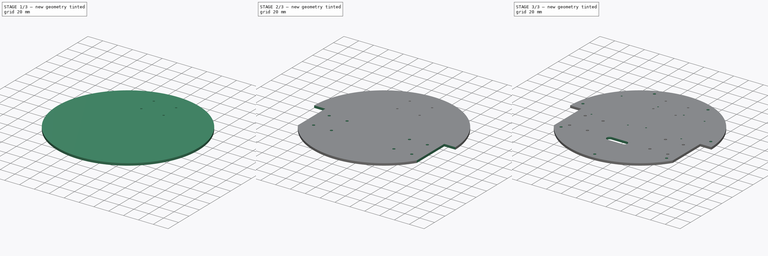
[diagram: build sequence overview — one tinted view per stage of 3, left to right]
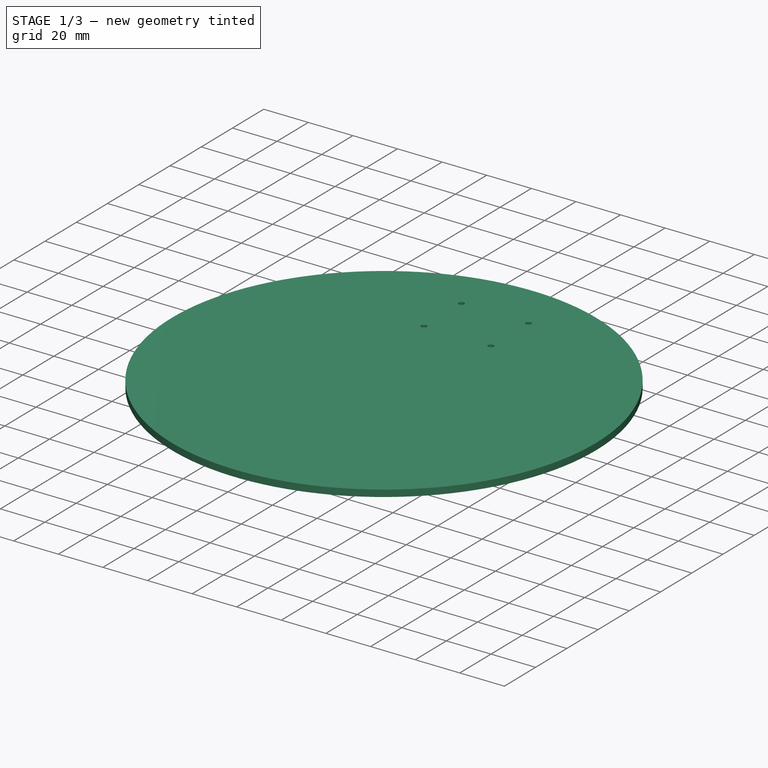
[diagram: stage 1 of 3 — iso view after this stage's code; geometry added in this stage tinted green]
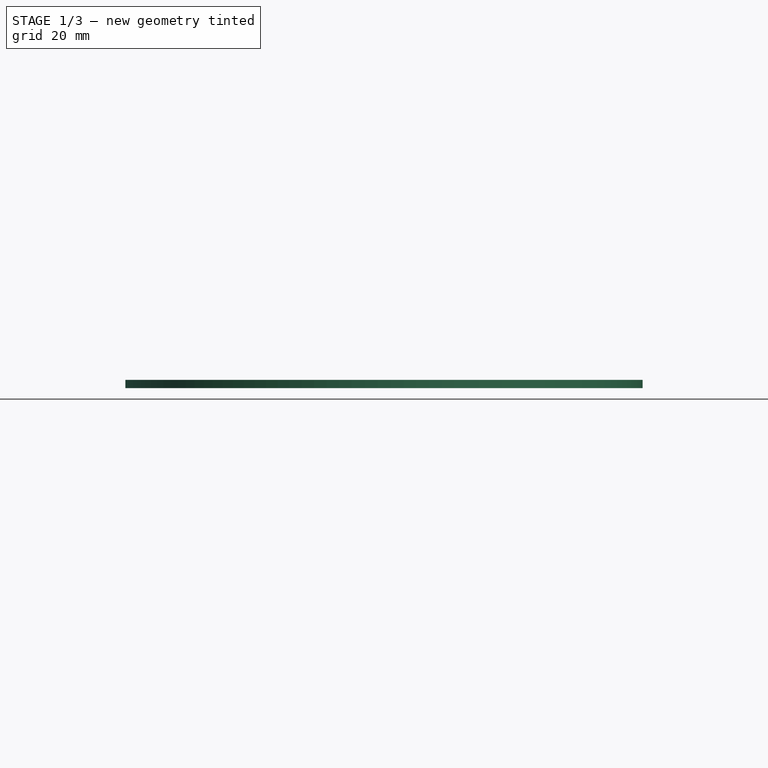
[diagram: stage 1 of 3 — front view after this stage's code; geometry added in this stage tinted green]
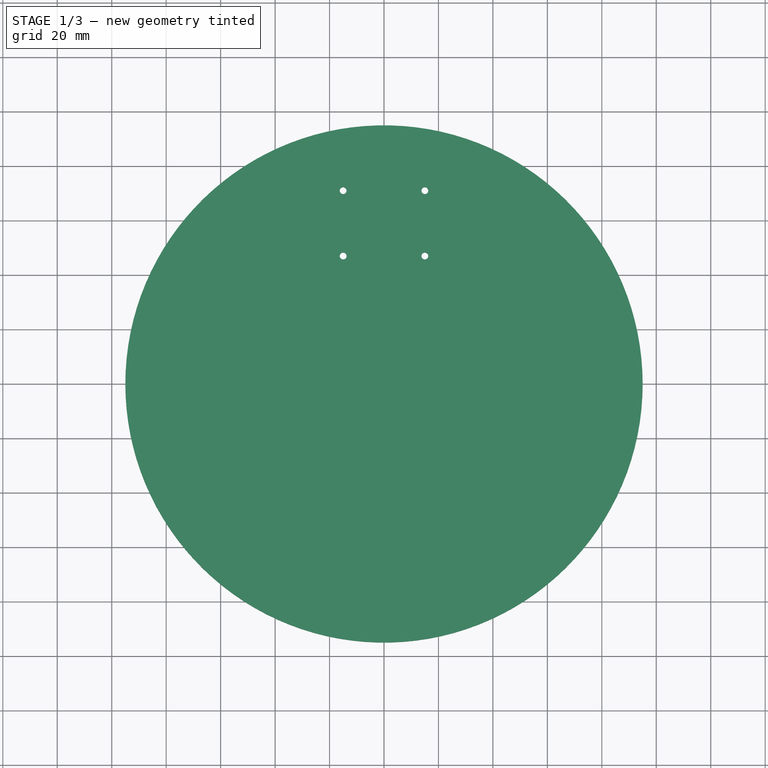
[diagram: stage 1 of 3 — top view after this stage's code; geometry added in this stage tinted green]
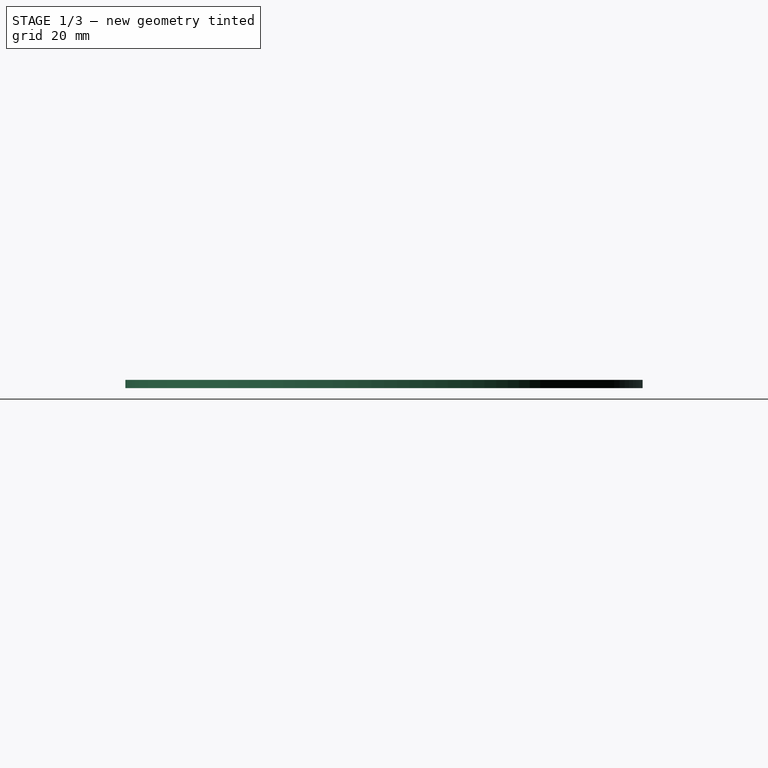
[diagram: stage 1 of 3 — right view after this stage's code; geometry added in this stage tinted green]
FCSTD DOCUMENT  (FreeCAD 0.17R13541 (Git))
Label: Minirobot_1-plate_v2
License: All rights reserved
LicenseURL: http://en.wikipedia.org/wiki/All_rights_reserved
objects: Sketcher::SketchObject×5, PartDesign::Pocket×4, PartDesign::Pad×1, PartDesign::Mirrored×1, PartDesign::Body×1, TechDraw::DrawSVGTemplate×1, TechDraw::DrawViewPart×1, TechDraw::DrawPage×1
note: 17 computed .brp shape members not serialized (recipe doc carries the construction recipe); baked Part::Feature solids carry a one-line shape summary decoded from their .brp

FEATURE [Sketcher::SketchObject] Sketch
  MapMode = 5
  Support = -> [XY_Plane]
  sketch-geometry (1):
    g0: Circle CenterX=0 CenterY=0 CenterZ=0 NormalX=0 NormalY=0 NormalZ=1 AngleXU=0 Radius=95
  constraints (2):
    c: Coincident(g0,g-1)
    c: Radius(g0) = 95
FEATURE [PartDesign::Pad] Pad
  Length = 3
  Length2 = 100
  Profile = -> Sketch
  Type = 0
FEATURE [Sketcher::SketchObject] Sketch001
  MapMode = 5
  Placement = pos=(0,0,3) rot=(0,0,1;0rad)
  Support = -> [Pad]
  sketch-geometry (11):
    g0: LineSegment [constr] StartX=-15 StartY=71 StartZ=0 EndX=15 EndY=71 EndZ=0
    g1: LineSegment [constr] StartX=15 StartY=71 StartZ=0 EndX=15 EndY=47 EndZ=0
    g2: LineSegment [constr] StartX=15 StartY=47 StartZ=0 EndX=-15 EndY=47 EndZ=0
    g3: LineSegment [constr] StartX=-15 StartY=47 StartZ=0 EndX=-15 EndY=71 EndZ=0
    g4: Circle CenterX=-15 CenterY=71 CenterZ=0 NormalX=0 NormalY=0 NormalZ=1 AngleXU=0 Radius=1.25
    g5: Circle CenterX=15 CenterY=71 CenterZ=0 NormalX=0 NormalY=0 NormalZ=1 AngleXU=0 Radius=1.25
    g6: Circle CenterX=15 CenterY=47 CenterZ=0 NormalX=0 NormalY=0 NormalZ=1 AngleXU=0 Radius=1.25
    g7: Circle CenterX=-15 CenterY=47 CenterZ=0 NormalX=0 NormalY=0 NormalZ=1 AngleXU=0 Radius=1.25
    g8: Circle [constr] CenterX=0 CenterY=59 CenterZ=0 NormalX=0 NormalY=0 NormalZ=1 AngleXU=0 Radius=32
    g9: LineSegment [constr] StartX=-15 StartY=71 StartZ=0 EndX=0 EndY=59 EndZ=0
    g10: LineSegment [constr] StartX=0 StartY=59 StartZ=0 EndX=15 EndY=47 EndZ=0
  constraints (27):
    c: Coincident(g0,g1)
    c: Coincident(g1,g2)
    c: Coincident(g2,g3)
    c: Coincident(g3,g0)
    c: Horizontal(g0)
    c: Horizontal(g2)
    c: Vertical(g1)
    c: Vertical(g3)
    c: Symmetric(g0,g0,g-2)
    c: DistanceY(g3,g3) = 24
    c: DistanceX(g0,g0) = 30
    c: Coincident(g4,g0)
    c: Coincident(g5,g0)
    c: Coincident(g6,g1)
    c: Coincident(g7,g2)
    c: Equal(g4,g7)
    c: Equal(g7,g6)
    c: Equal(g6,g5)
    c: Radius(g5) = 1.25
    c: PointOnObject(g8,g-2)
    c: Coincident(g0,g9)
    c: Coincident(g9,g8)
    c: Coincident(g9,g10)
    c: Coincident(g10,g1)
    c: Equal(g9,g10)
    c: Radius(g8) = 32
    c: DistanceY(g8) = 59
FEATURE [PartDesign::Pocket] Pocket  label="Caster_holes"
  BaseFeature = -> Pad
  Length = 5
  Length2 = 100
  Profile = -> Sketch001
  Type = 1
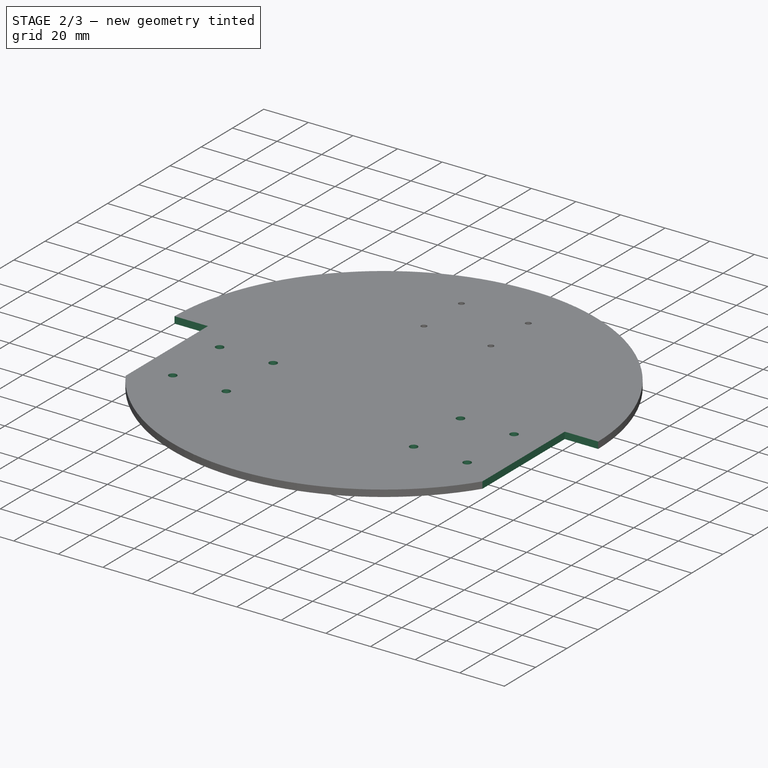
[diagram: stage 2 of 3 — iso view after this stage's code; geometry added in this stage tinted green]
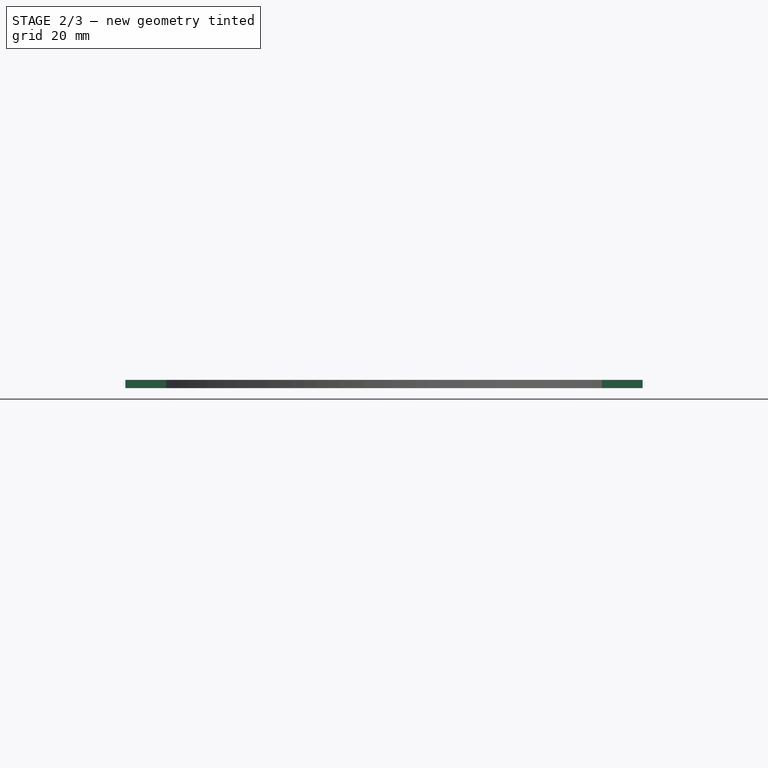
[diagram: stage 2 of 3 — front view after this stage's code; geometry added in this stage tinted green]
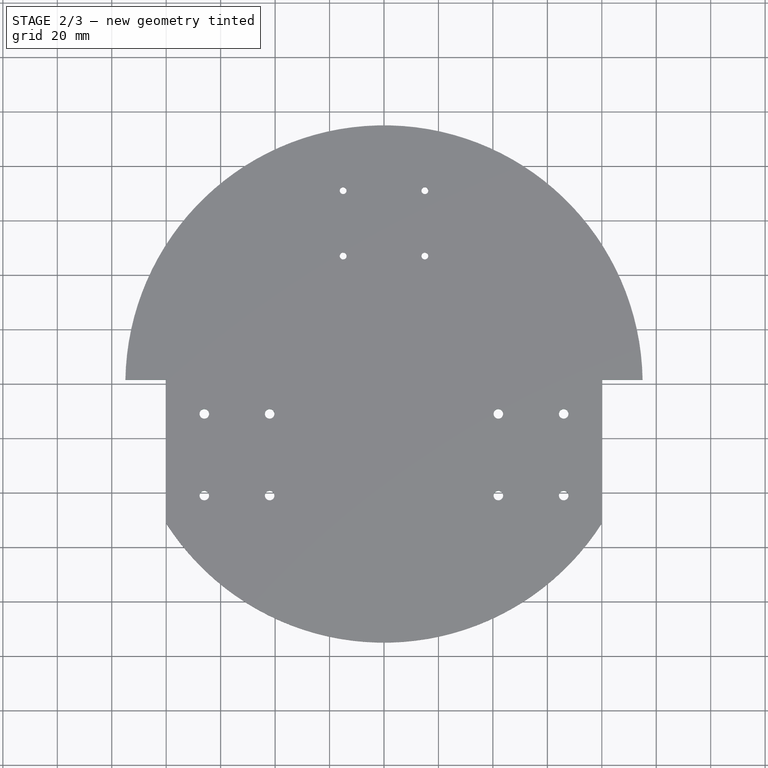
[diagram: stage 2 of 3 — top view after this stage's code; geometry added in this stage tinted green]
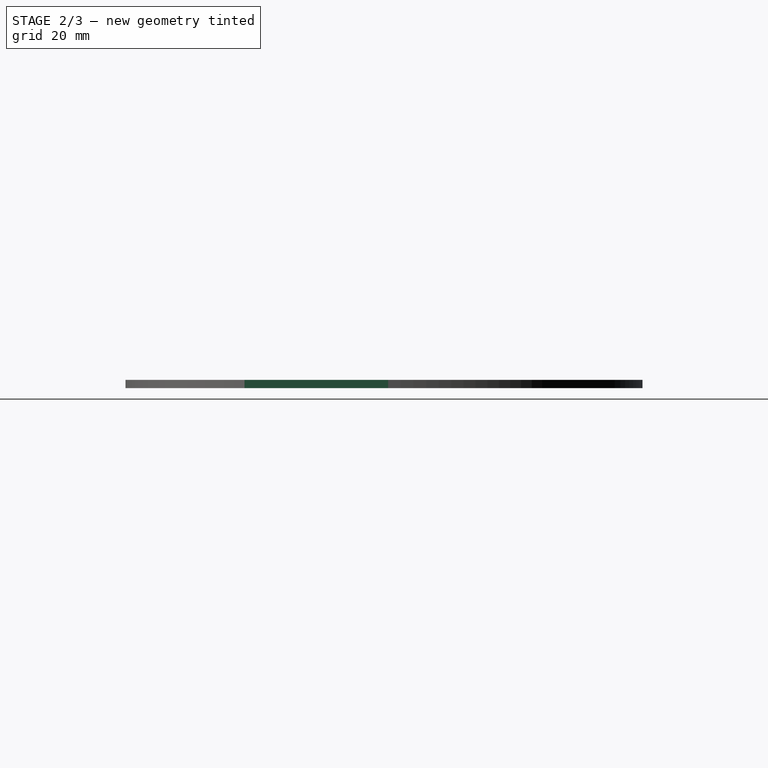
[diagram: stage 2 of 3 — right view after this stage's code; geometry added in this stage tinted green]
FEATURE [Sketcher::SketchObject] Sketch002
  MapMode = 5
  Placement = pos=(0,0,3) rot=(0,0,1;0rad)
  Support = -> [Pocket]
  sketch-geometry (12):
    g0: LineSegment StartX=-96 StartY=1.5 StartZ=0 EndX=-80 EndY=1.5 EndZ=0
    g1: LineSegment StartX=-80 StartY=1.5 StartZ=0 EndX=-80 EndY=-53.5 EndZ=0
    g2: LineSegment StartX=-80 StartY=-53.5 StartZ=0 EndX=-96 EndY=-53.5 EndZ=0
    g3: LineSegment StartX=-96 StartY=-53.5 StartZ=0 EndX=-96 EndY=1.5 EndZ=0
    g4: LineSegment [constr] StartX=-66 StartY=-11 StartZ=0 EndX=-42 EndY=-11 EndZ=0
    g5: LineSegment [constr] StartX=-42 StartY=-11 StartZ=0 EndX=-42 EndY=-41 EndZ=0
    g6: LineSegment [constr] StartX=-42 StartY=-41 StartZ=0 EndX=-66 EndY=-41 EndZ=0
    g7: LineSegment [constr] StartX=-66 StartY=-41 StartZ=0 EndX=-66 EndY=-11 EndZ=0
    g8: Circle CenterX=-66 CenterY=-11 CenterZ=0 NormalX=0 NormalY=0 NormalZ=1 AngleXU=0 Radius=1.75
    g9: Circle CenterX=-42 CenterY=-11 CenterZ=0 NormalX=0 NormalY=0 NormalZ=1 AngleXU=0 Radius=1.75
    g10: Circle CenterX=-66 CenterY=-41 CenterZ=0 NormalX=0 NormalY=0 NormalZ=1 AngleXU=0 Radius=1.75
    g11: Circle CenterX=-42 CenterY=-41 CenterZ=0 NormalX=0 NormalY=0 NormalZ=1 AngleXU=0 Radius=1.75
  constraints (32):
    c: Coincident(g0,g1)
    c: Coincident(g1,g2)
    c: Coincident(g2,g3)
    c: Coincident(g3,g0)
    c: Horizontal(g0)
    c: Horizontal(g2)
    c: Vertical(g1)
    c: Vertical(g3)
    c: DistanceX(g2,g2) = 16
    c: DistanceY(g3,g3) = 55
    c: Coincident(g4,g5)
    c: Coincident(g5,g6)
    c: Coincident(g6,g7)
    c: Coincident(g7,g4)
    c: Horizontal(g4)
    c: Horizontal(g6)
    c: Vertical(g5)
    c: Vertical(g7)
    c: Coincident(g8,g4)
    c: Coincident(g9,g4)
    c: Coincident(g10,g6)
    c: Coincident(g11,g5)
    c: Equal(g11,g10)
    c: Equal(g10,g8)
    c: Equal(g8,g9)
    c: Radius(g9) = 1.75
    c: DistanceX(g4,g4) = 24
    c: DistanceY(g5,g5) = 30
    c: DistanceY(g1,g6) = 12.5
    c: DistanceX(g1,g6) = 14
    c: DistanceX(g5) = -42
    c: DistanceY(g4) = -11
FEATURE [PartDesign::Pocket] Pocket001  label="wheel_cut-holes"
  BaseFeature = -> Pocket
  Length = 5
  Length2 = 100
  Profile = -> Sketch002
  Type = 1
FEATURE [PartDesign::Mirrored] Mirrored
  BaseFeature = -> Pocket001
  MirrorPlane = -> YZ_Plane
  Originals = -> [Pocket001]
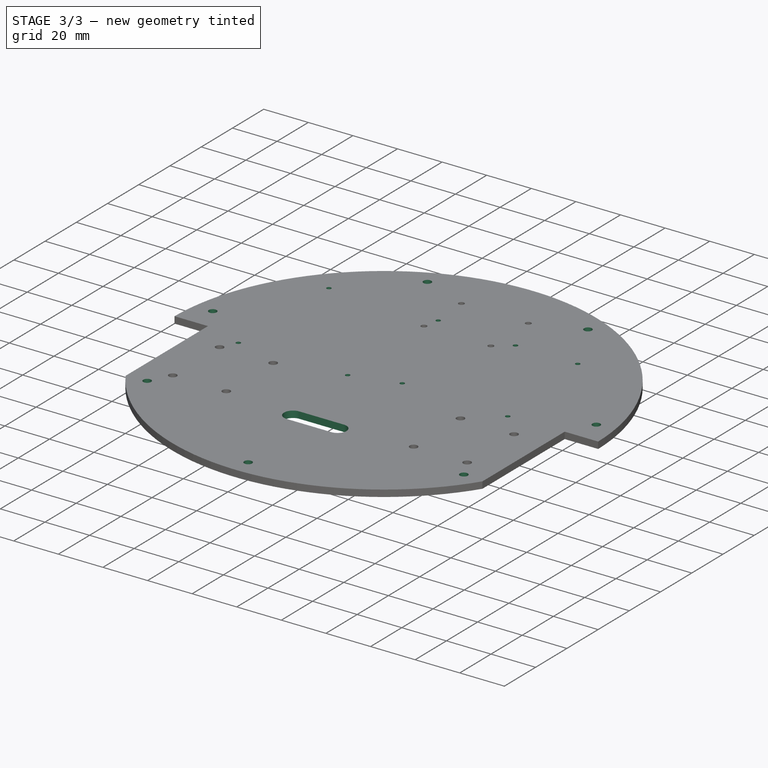
[diagram: stage 3 of 3 — iso view after this stage's code; geometry added in this stage tinted green]
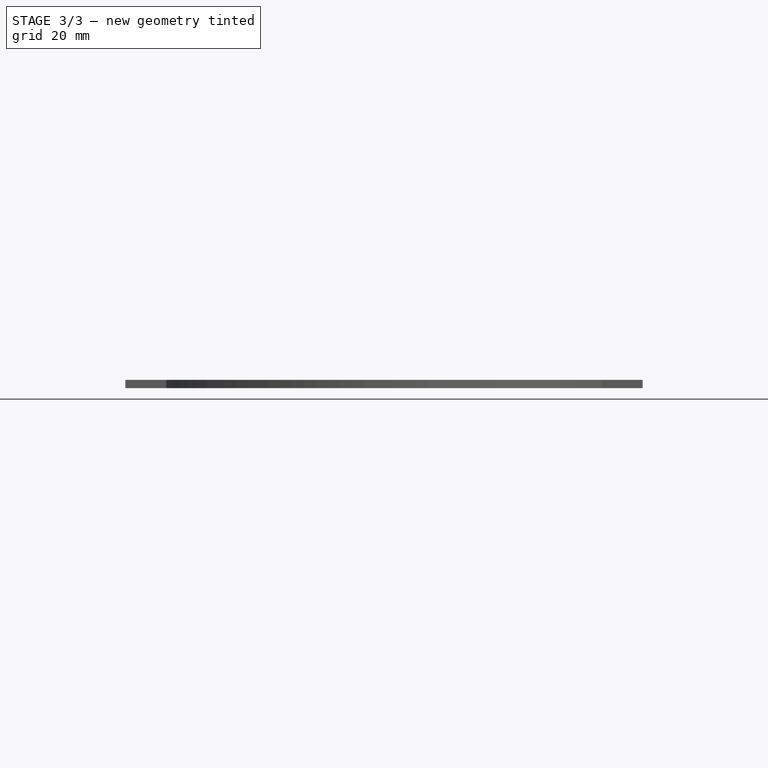
[diagram: stage 3 of 3 — front view after this stage's code; geometry added in this stage tinted green]
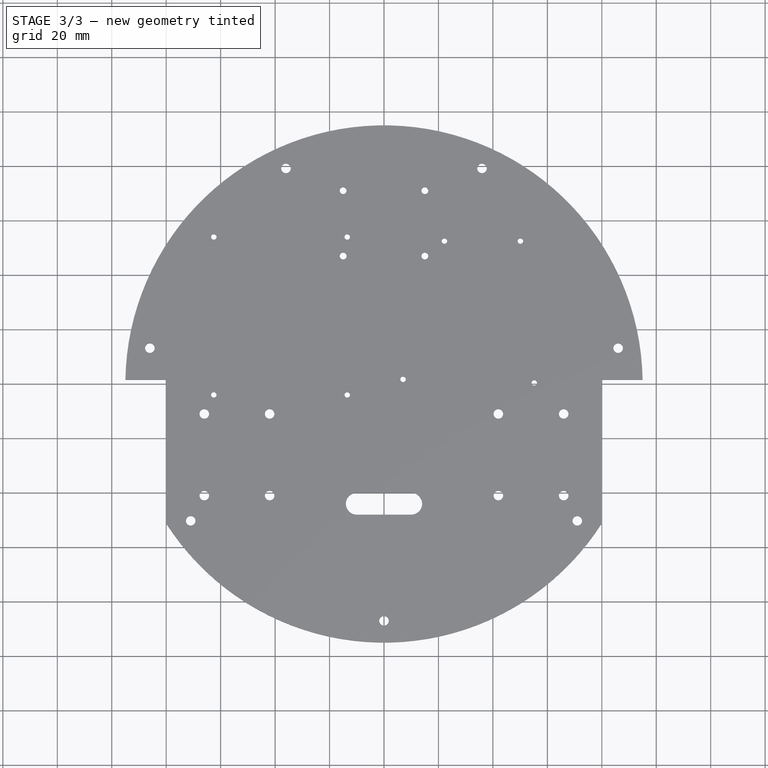
[diagram: stage 3 of 3 — top view after this stage's code; geometry added in this stage tinted green]
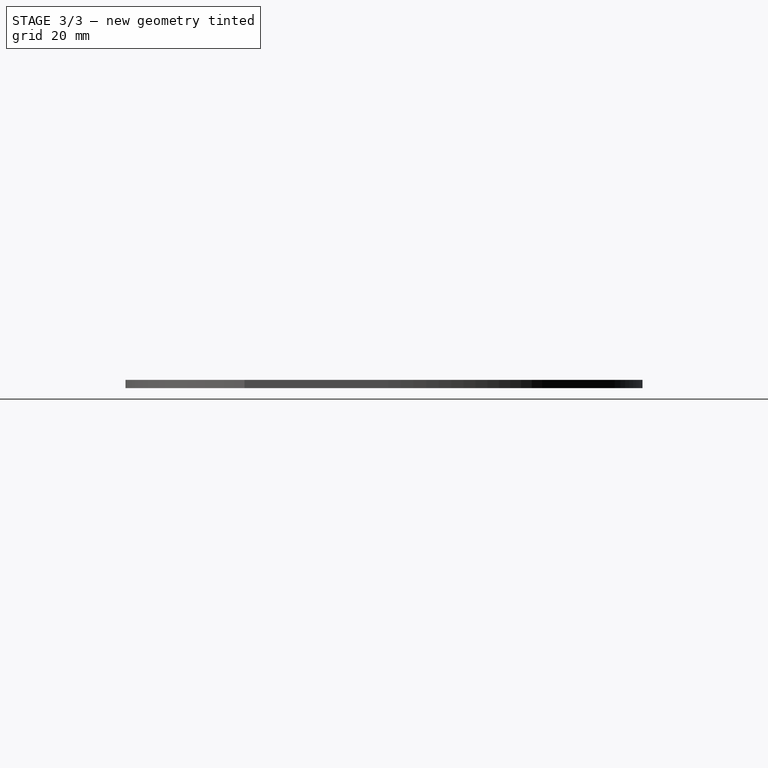
[diagram: stage 3 of 3 — right view after this stage's code; geometry added in this stage tinted green]
FEATURE [Sketcher::SketchObject] Sketch003
  MapMode = 5
  Placement = pos=(0,0,3) rot=(0,0,1;0rad)
  Support = -> [Mirrored]
  sketch-geometry (8):
    g0: Circle CenterX=-36 CenterY=79.2023 CenterZ=0 NormalX=0 NormalY=0 NormalZ=1 AngleXU=0 Radius=1.75
    g1: Circle CenterX=36 CenterY=79.2023 CenterZ=0 NormalX=0 NormalY=0 NormalZ=1 AngleXU=0 Radius=1.75
    g2: Circle CenterX=-71 CenterY=-50.2792 CenterZ=0 NormalX=0 NormalY=0 NormalZ=1 AngleXU=0 Radius=1.75
    g3: Circle CenterX=71 CenterY=-50.2792 CenterZ=0 NormalX=0 NormalY=0 NormalZ=1 AngleXU=0 Radius=1.75
    g4: Circle [constr] CenterX=0 CenterY=0 CenterZ=0 NormalX=0 NormalY=0 NormalZ=1 AngleXU=0 Radius=87
    g5: Circle CenterX=-86 CenterY=13.1529 CenterZ=0 NormalX=0 NormalY=0 NormalZ=1 AngleXU=0 Radius=1.75
    g6: Circle CenterX=86 CenterY=13.1529 CenterZ=0 NormalX=0 NormalY=0 NormalZ=1 AngleXU=0 Radius=1.75
    g7: Circle CenterX=0 CenterY=-87 CenterZ=0 NormalX=0 NormalY=0 NormalZ=1 AngleXU=0 Radius=1.75
  constraints (23):
    c: Equal(g1,g0)
    c: Radius(g0) = 1.75
    c: Equal(g3,g2)
    c: Equal(g2,g0)
    c: Coincident(g4,g-1)
    c: PointOnObject(g0,g4)
    c: PointOnObject(g1,g4)
    c: Horizontal(g0,g1)
    c: PointOnObject(g2,g4)
    c: PointOnObject(g3,g4)
    c: Horizontal(g3,g2)
    c: DistanceX(g0,g1) = 72
    c: DistanceX(g2,g3) = 142
    c: Radius(g4) = 87
    c: PointOnObject(g5,g4)
    c: PointOnObject(g6,g4)
    c: Horizontal(g5,g6)
    c: DistanceX(g5,g6) = 172
    c: PointOnObject(g7,g4)
    c: PointOnObject(g7,g-2)
    c: Equal(g5,g6)
    c: Equal(g6,g7)
    c: Equal(g7,g0)
FEATURE [PartDesign::Pocket] Pocket002  label="Mounting holes"
  BaseFeature = -> Mirrored
  Length = 5
  Length2 = 100
  Profile = -> Sketch003
  Type = 1
FEATURE [Sketcher::SketchObject] Sketch004
  MapMode = 5
  Placement = pos=(0,0,3) rot=(0,0,1;0rad)
  Support = -> [Pocket002]
  sketch-geometry (17):
    g0: Circle [constr] CenterX=0 CenterY=64 CenterZ=0 NormalX=0 NormalY=0 NormalZ=1 AngleXU=0 Radius=32
    g1: ArcOfCircle CenterX=-10 CenterY=-44 CenterZ=0 NormalX=0 NormalY=0 NormalZ=1 AngleXU=0 Radius=4 StartAngle=1.5708 EndAngle=4.71239
    g2: ArcOfCircle CenterX=10 CenterY=-44 CenterZ=0 NormalX=0 NormalY=0 NormalZ=1 AngleXU=0 Radius=4 StartAngle=4.71239 EndAngle=7.85398
    g3: LineSegment StartX=-10 StartY=-48 StartZ=0 EndX=10 EndY=-48 EndZ=0
    g4: LineSegment StartX=-10 StartY=-40 StartZ=0 EndX=10 EndY=-40 EndZ=0
    g5: LineSegment [constr] StartX=-62.5 StartY=54 StartZ=0 EndX=-13.5 EndY=54 EndZ=0
    g6: LineSegment [constr] StartX=-13.5 StartY=54 StartZ=0 EndX=-13.5 EndY=-4 EndZ=0
    g7: LineSegment [constr] StartX=-13.5 StartY=-4 StartZ=0 EndX=-62.5 EndY=-4 EndZ=0
    g8: LineSegment [constr] StartX=-62.5 StartY=-4 StartZ=0 EndX=-62.5 EndY=54 EndZ=0
    g9: Circle CenterX=-62.5 CenterY=-4 CenterZ=0 NormalX=0 NormalY=0 NormalZ=1 AngleXU=0 Radius=1
    g10: Circle CenterX=-62.5 CenterY=54 CenterZ=0 NormalX=0 NormalY=0 NormalZ=1 AngleXU=0 Radius=1
    g11: Circle CenterX=-13.5 CenterY=54 CenterZ=0 NormalX=0 NormalY=0 NormalZ=1 AngleXU=0 Radius=1
    g12: Circle CenterX=-13.5 CenterY=-4 CenterZ=0 NormalX=0 NormalY=0 NormalZ=1 AngleXU=0 Radius=1
    g13: Circle CenterX=22.2 CenterY=52.5 CenterZ=0 NormalX=0 NormalY=0 NormalZ=1 AngleXU=0 Radius=1
    g14: Circle CenterX=7 CenterY=1.7 CenterZ=0 NormalX=0 NormalY=0 NormalZ=1 AngleXU=0 Radius=1
    g15: Circle CenterX=55.2 CenterY=0.4 CenterZ=0 NormalX=0 NormalY=0 NormalZ=1 AngleXU=0 Radius=1
    g16: Circle CenterX=50.1 CenterY=52.5 CenterZ=0 NormalX=0 NormalY=0 NormalZ=1 AngleXU=0 Radius=1
  constraints (45):
    c: Radius(g0) = 32
    c: DistanceY(g0) = 64
    c: Tangent(g1,g4) = 1.5708
    c: Tangent(g1,g3) = -1.5708
    c: Tangent(g3,g2) = -1.5708
    c: Tangent(g4,g2) = 1.5708
    c: Horizontal(g3)
    c: Equal(g1,g2)
    c: Radius(g1) = 4
    c: DistanceX(g4,g4) = 20
    c: PointOnObject(g0,g-2)
    c: Coincident(g5,g6)
    c: Coincident(g6,g7)
    c: Coincident(g7,g8)
    c: Coincident(g8,g5)
    c: Horizontal(g5)
    c: Horizontal(g7)
    c: Vertical(g6)
    c: Vertical(g8)
    c: DistanceX(g5,g5) = 49
    c: DistanceY(g8,g8) = 58
    c: Coincident(g9,g7)
    c: Coincident(g10,g5)
    c: Coincident(g11,g5)
    c: Coincident(g12,g6)
    c: Equal(g10,g9)
    c: Equal(g9,g12)
    c: Equal(g12,g11)
    c: Equal(g14,g13)
    c: Equal(g13,g15)
    c: Equal(g15,g16)
    c: Radius(g10) = 1
    c: Horizontal(g13,g16)
    c: DistanceX(g13,g16) = 27.9
    c: DistanceY(g15,g14) = 1.3
    c: DistanceY(g13,g14) = -50.8
    c: DistanceX(g14,g15) = 48.2
    c: DistanceY(g15) = 0.4
    c: DistanceY(g2) = -44
    c: DistanceX(g16,g15) = 5.1
    c: Symmetric(g2,g1,g-2)
    c: DistanceX(g6) = -13.5
    c: DistanceX(g14) = 7
    c: DistanceY(g6) = -4
    c: Radius(g14) = 1
FEATURE [PartDesign::Pocket] Pocket003  label="Board mounting holes"
  BaseFeature = -> Pocket002
  Length = 5
  Length2 = 100
  Profile = -> Sketch004
  Type = 1
FEATURE [PartDesign::Body] Body
  Group = -> [Sketch,Pad,Sketch001,Pocket,Sketch002,Pocket001,Mirrored,Sketch003,Pocket002,Sketch004,Pocket003]
  Origin = -> Origin
  Tip = -> Pocket003
FEATURE [TechDraw::DrawSVGTemplate] Template
  Height = 210
  Orientation = 1
  Width = 297
FEATURE [TechDraw::DrawViewPart] View
  CoarseView = false
  Direction = (0,0,1)
  Focus = 100
  HardHidden = false
  IsoCount = 0
  IsoHidden = false
  IsoVisible = false
  LockPosition = false
  Perspective = false
  Rotation = 0
  ScaleType = 0
  SeamHidden = false
  SeamVisible = false
  SmoothHidden = false
  SmoothVisible = false
  Source = -> [Body]
  X = 148.5
  Y = 105
FEATURE [TechDraw::DrawPage] Page
  KeepUpdated = true
  ProjectionType = 0
  Template = -> Template
  Views = -> [View]
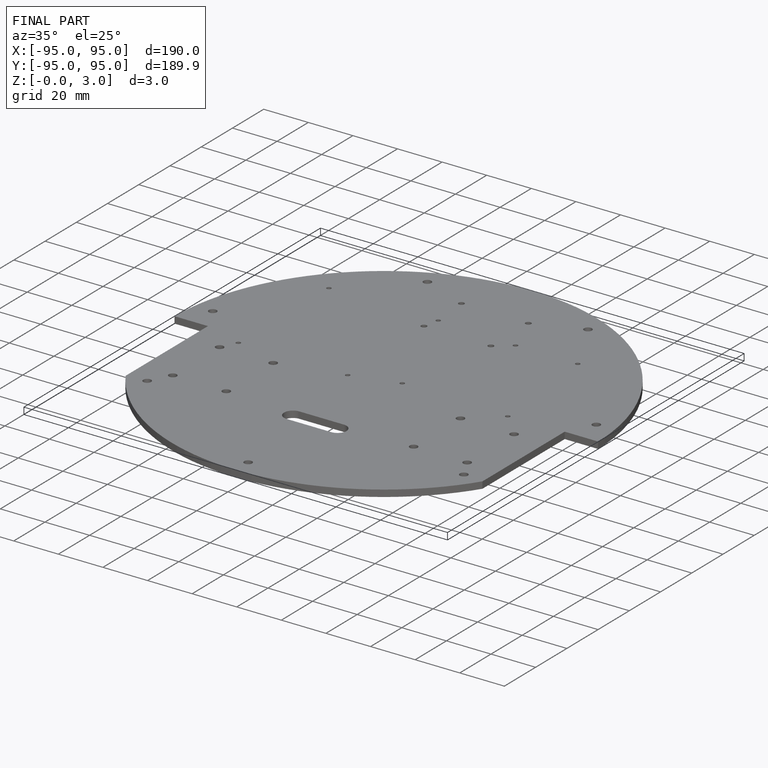
[diagram: finished part — iso view with bounding-box wireframe]
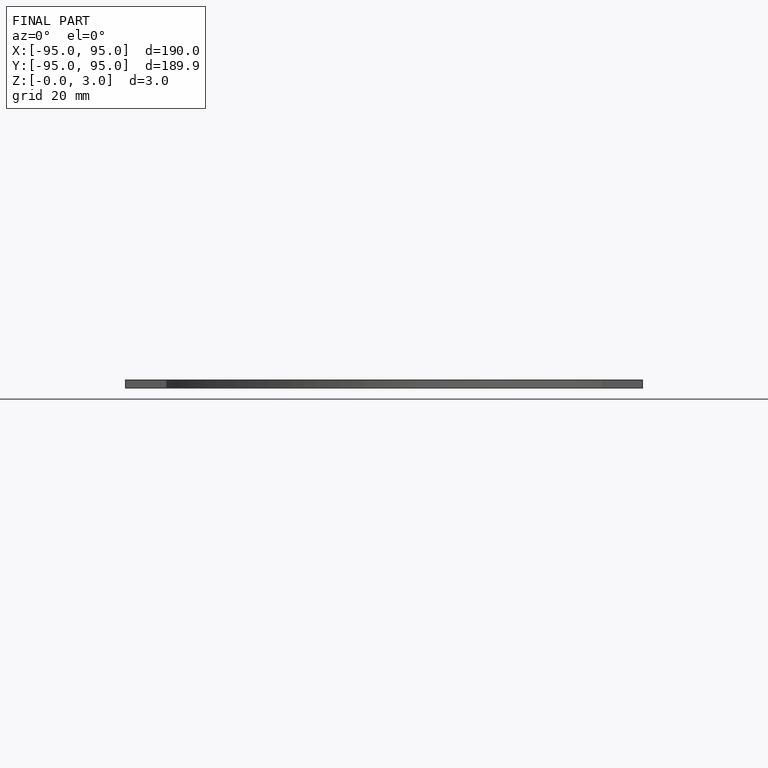
[diagram: finished part — front view with bounding-box wireframe]
